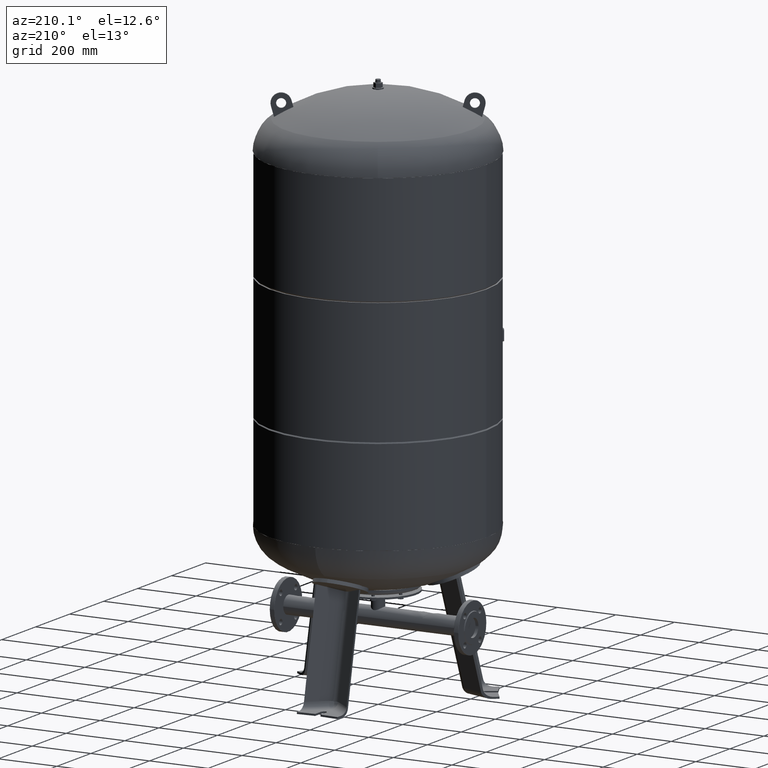
[diagram: clean part render]
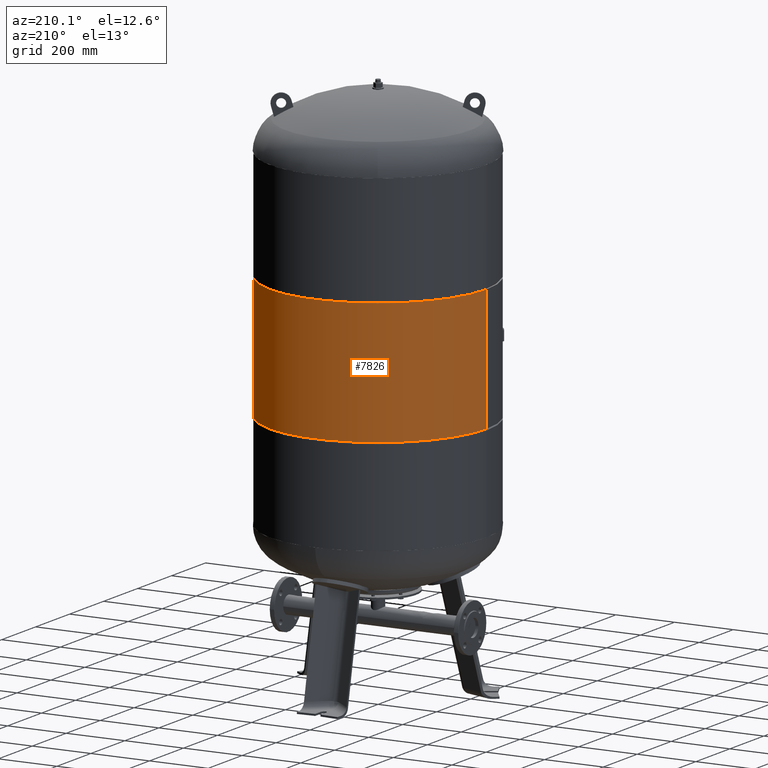
[diagram: same view with one face highlighted and labeled with its STEP entity id]
A machine part, auxiliary view. The second image highlights one B-rep face of the part: STEP entity #7826.
In plain terms, the highlighted cylindrical surface (partial cylindrical patch) has radius 370 mm, axis along (0, 0, 1).
Its self-contained STEP definition (entity closure, byte-faithful):
#7626=CARTESIAN_POINT('',(369.999999999999720,0.0,1263.666666666666500));
#7627=VERTEX_POINT('',#7626);
#7628=CARTESIAN_POINT('',(370.000000000002610,0.0,842.104553026880580));
#7629=VERTEX_POINT('',#7628);
#7630=CARTESIAN_POINT('',(369.999999999999720,0.0,1263.666666666666500));
#7631=DIRECTION('',(0.0,0.0,-1.0));
#7632=VECTOR('',#7631,421.562113639785930);
#7633=LINE('',#7630,#7632);
#7634=EDGE_CURVE('',#7627,#7629,#7633,.T.);
#7636=CARTESIAN_POINT('',(-370.000000000001140,-4.531044E-014,1263.666666666666500));
#7637=VERTEX_POINT('',#7636);
#7645=CARTESIAN_POINT('',(-370.000000000001140,-4.531044E-014,842.104553026880470));
#7646=VERTEX_POINT('',#7645);
#7647=CARTESIAN_POINT('',(-370.000000000001140,-4.531044E-014,1263.666666666666500));
#7648=DIRECTION('',(0.0,0.0,-1.0));
#7649=VECTOR('',#7648,421.562113639786050);
#7650=LINE('',#7647,#7649);
#7651=EDGE_CURVE('',#7637,#7646,#7650,.T.);
#7794=CARTESIAN_POINT('',(-6.971199E-015,0.0,842.104553026880470));
#7795=DIRECTION('',(0.0,0.0,1.0));
#7796=DIRECTION('',(1.0,0.0,0.0));
#7797=AXIS2_PLACEMENT_3D('',#7794,#7795,#7796);
#7798=CIRCLE('',#7797,370.000000000002610);
#7799=EDGE_CURVE('',#7629,#7646,#7798,.T.);
#7809=CARTESIAN_POINT('',(-7.289513E-016,0.0,1052.885609846773600));
#7810=DIRECTION('',(2.961484E-017,0.0,1.0));
#7811=DIRECTION('',(1.0,0.0,0.0));
#7812=AXIS2_PLACEMENT_3D('',#7809,#7810,#7811);
#7813=CYLINDRICAL_SURFACE('',#7812,370.000000000001140);
#7814=ORIENTED_EDGE('',*,*,#7634,.T.);
#7815=ORIENTED_EDGE('',*,*,#7799,.T.);
#7816=ORIENTED_EDGE('',*,*,#7651,.F.);
#7817=CARTESIAN_POINT('',(5.513297E-015,0.0,1263.666666666666500));
#7818=DIRECTION('',(0.0,0.0,1.0));
#7819=DIRECTION('',(1.0,0.0,0.0));
#7820=AXIS2_PLACEMENT_3D('',#7817,#7818,#7819);
#7821=CIRCLE('',#7820,369.999999999999720);
#7822=EDGE_CURVE('',#7627,#7637,#7821,.T.);
#7823=ORIENTED_EDGE('',*,*,#7822,.F.);
#7824=EDGE_LOOP('',(#7814,#7815,#7816,#7823));
#7825=FACE_OUTER_BOUND('',#7824,.T.);
#7826=ADVANCED_FACE('',(#7825),#7813,.T.);